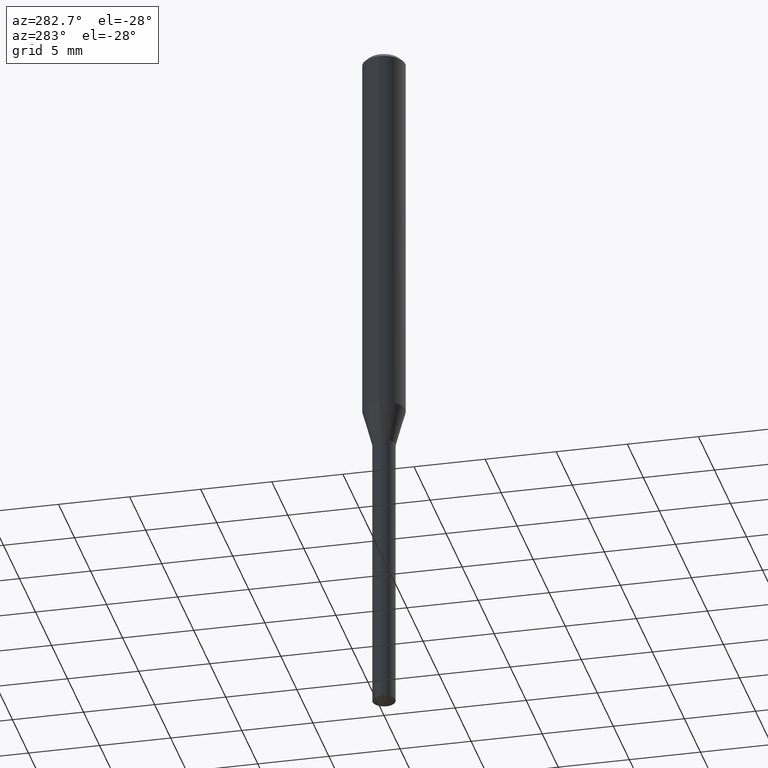
[diagram: clean part render]
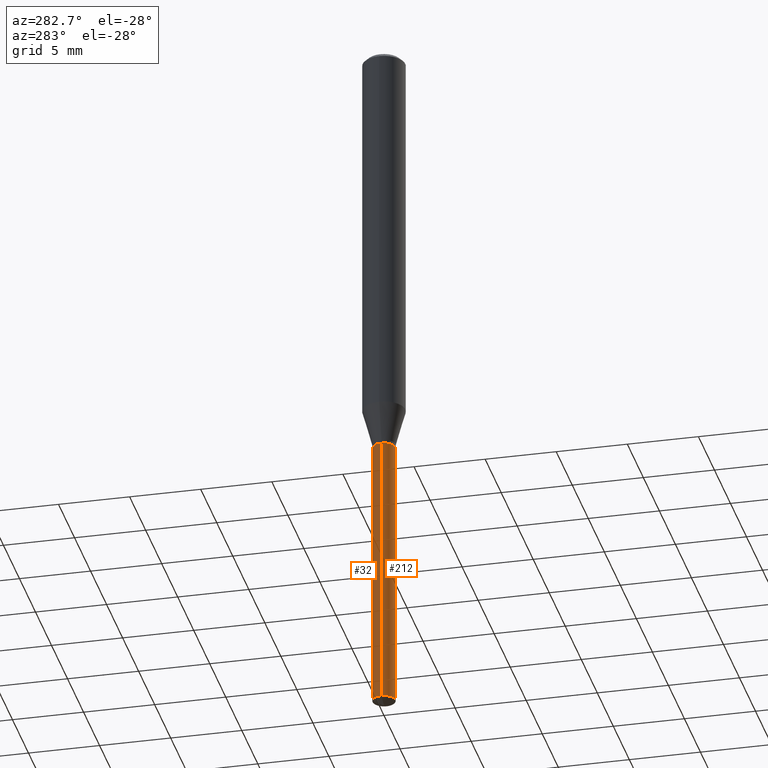
[diagram: same view with one multi-face feature highlighted, each face labeled with its STEP entity id]
A machine part, auxiliary view. The highlighted faces form ONE feature: a constant-radius fillet chain: 2 tangent blend faces with common blend radius 0.8001 mm. The faces share edges in the B-rep.
Their STEP definitions:
[1] entity #32 (Cylinder):
#10 = VERTEX_POINT ( 'NONE', #104 ) ;
#30 = VERTEX_POINT ( 'NONE', #140 ) ;
#32 = ADVANCED_FACE ( 'NONE', ( #411 ), #332, .T. ) ;
#42 = DIRECTION ( 'NONE',  ( -2.445468806185136877E-29, 3.491481338843145188E-15, 1.000000000000000000 ) ) ;
#49 = DIRECTION ( 'NONE',  ( 1.000000000000000000, -6.982962677686270655E-15, 0.000000000000000000 ) ) ;
#51 = CIRCLE ( 'NONE', #114, 0.03150000000000000022 ) ;
#67 = VECTOR ( 'NONE', #42, 39.37007874015748143 ) ;
#90 = VERTEX_POINT ( 'NONE', #331 ) ;
#92 = CARTESIAN_POINT ( 'NONE',  ( 4.777984608764188742E-29, -6.821695724184587194E-15, -1.953811308768117927 ) ) ;
#104 = CARTESIAN_POINT ( 'NONE',  ( -0.03150000000000000022, -5.248921204981680958E-15, -1.181099999999999817 ) ) ;
#108 = AXIS2_PLACEMENT_3D ( 'NONE', #470, #325, #49 ) ;
#114 = AXIS2_PLACEMENT_3D ( 'NONE', #92, #192, #359 ) ;
#116 = ORIENTED_EDGE ( 'NONE', *, *, #364, .T. ) ;
#125 = LINE ( 'NONE', #205, #67 ) ;
#139 = AXIS2_PLACEMENT_3D ( 'NONE', #475, #477, #213 ) ;
#140 = CARTESIAN_POINT ( 'NONE',  ( 0.03150000000000000022, -4.343751933654756363E-15, -1.181099999999999817 ) ) ;
#157 = ORIENTED_EDGE ( 'NONE', *, *, #290, .F. ) ;
#167 = VERTEX_POINT ( 'NONE', #388 ) ;
#192 = DIRECTION ( 'NONE',  ( -2.445468806185136597E-29, 3.491481338843145583E-15, 1.000000000000000000 ) ) ;
#205 = CARTESIAN_POINT ( 'NONE',  ( 0.03150000000000000022, -4.343751933654756363E-15, -1.181099999999999817 ) ) ;
#206 = VECTOR ( 'NONE', #362, 39.37007874015748143 ) ;
#213 = DIRECTION ( 'NONE',  ( 1.000000000000000000, -6.982962677686270655E-15, 0.000000000000000000 ) ) ;
#236 = LINE ( 'NONE', #403, #206 ) ;
#238 = EDGE_CURVE ( 'NONE', #167, #90, #51, .T. ) ;
#256 = CIRCLE ( 'NONE', #108, 0.03150000000000000022 ) ;
#259 = EDGE_LOOP ( 'NONE', ( #442, #116, #351, #157 ) ) ;
#290 = EDGE_CURVE ( 'NONE', #167, #30, #125, .T. ) ;
#325 = DIRECTION ( 'NONE',  ( -2.445468806185136597E-29, 3.491481338843145583E-15, 1.000000000000000000 ) ) ;
#329 = EDGE_CURVE ( 'NONE', #30, #10, #256, .T. ) ;
#331 = CARTESIAN_POINT ( 'NONE',  ( -0.03150000000000000716, -6.597874762420155043E-15, -1.953811308768117927 ) ) ;
#332 = CYLINDRICAL_SURFACE ( 'NONE', #139, 0.03150000000000000022 ) ;
#351 = ORIENTED_EDGE ( 'NONE', *, *, #329, .F. ) ;
#359 = DIRECTION ( 'NONE',  ( 1.000000000000000000, -6.982962677686255667E-15, 0.000000000000000000 ) ) ;
#362 = DIRECTION ( 'NONE',  ( -2.445468806185136877E-29, 3.491481338843145188E-15, 1.000000000000000000 ) ) ;
#364 = EDGE_CURVE ( 'NONE', #90, #10, #236, .T. ) ;
#388 = CARTESIAN_POINT ( 'NONE',  ( 0.03150000000000000716, -7.041659048531704533E-15, -1.953811308768117927 ) ) ;
#403 = CARTESIAN_POINT ( 'NONE',  ( -0.03150000000000000022, -3.899967647543207661E-15, -1.181099999999999817 ) ) ;
#411 = FACE_OUTER_BOUND ( 'NONE', #259, .T. ) ;
#442 = ORIENTED_EDGE ( 'NONE', *, *, #238, .T. ) ;
#470 = CARTESIAN_POINT ( 'NONE',  ( 2.888343206985264316E-29, -4.123788609307638235E-15, -1.181099999999999817 ) ) ;
#475 = CARTESIAN_POINT ( 'NONE',  ( 2.888343206985264877E-29, -4.123788609307639024E-15, -1.181099999999999817 ) ) ;
#477 = DIRECTION ( 'NONE',  ( -2.445468806185136597E-29, 3.491481338843145583E-15, 1.000000000000000000 ) ) ;
[2] entity #212 (Cylinder):
#10 = VERTEX_POINT ( 'NONE', #104 ) ;
#15 = ORIENTED_EDGE ( 'NONE', *, *, #384, .F. ) ;
#30 = VERTEX_POINT ( 'NONE', #140 ) ;
#40 = DIRECTION ( 'NONE',  ( -2.445468806185136597E-29, 3.491481338843145583E-15, 1.000000000000000000 ) ) ;
#42 = DIRECTION ( 'NONE',  ( -2.445468806185136877E-29, 3.491481338843145188E-15, 1.000000000000000000 ) ) ;
#46 = DIRECTION ( 'NONE',  ( -2.445468806185136597E-29, 3.491481338843145583E-15, 1.000000000000000000 ) ) ;
#67 = VECTOR ( 'NONE', #42, 39.37007874015748143 ) ;
#80 = EDGE_LOOP ( 'NONE', ( #435, #354, #336, #15 ) ) ;
#85 = DIRECTION ( 'NONE',  ( 1.000000000000000000, -6.982962677686270655E-15, 0.000000000000000000 ) ) ;
#87 = AXIS2_PLACEMENT_3D ( 'NONE', #432, #40, #85 ) ;
#90 = VERTEX_POINT ( 'NONE', #331 ) ;
#104 = CARTESIAN_POINT ( 'NONE',  ( -0.03150000000000000022, -5.248921204981680958E-15, -1.181099999999999817 ) ) ;
#125 = LINE ( 'NONE', #205, #67 ) ;
#140 = CARTESIAN_POINT ( 'NONE',  ( 0.03150000000000000022, -4.343751933654756363E-15, -1.181099999999999817 ) ) ;
#151 = AXIS2_PLACEMENT_3D ( 'NONE', #327, #46, #426 ) ;
#167 = VERTEX_POINT ( 'NONE', #388 ) ;
#185 = FACE_OUTER_BOUND ( 'NONE', #80, .T. ) ;
#204 = DIRECTION ( 'NONE',  ( -2.445468806185136597E-29, 3.491481338843145583E-15, 1.000000000000000000 ) ) ;
#205 = CARTESIAN_POINT ( 'NONE',  ( 0.03150000000000000022, -4.343751933654756363E-15, -1.181099999999999817 ) ) ;
#206 = VECTOR ( 'NONE', #362, 39.37007874015748143 ) ;
#212 = ADVANCED_FACE ( 'NONE', ( #185 ), #346, .T. ) ;
#236 = LINE ( 'NONE', #403, #206 ) ;
#250 = DIRECTION ( 'NONE',  ( 1.000000000000000000, -6.982962677686270655E-15, 0.000000000000000000 ) ) ;
#290 = EDGE_CURVE ( 'NONE', #167, #30, #125, .T. ) ;
#308 = CARTESIAN_POINT ( 'NONE',  ( 2.888343206985264877E-29, -4.123788609307639024E-15, -1.181099999999999817 ) ) ;
#317 = CIRCLE ( 'NONE', #151, 0.03150000000000000022 ) ;
#327 = CARTESIAN_POINT ( 'NONE',  ( 4.777984608764188742E-29, -6.821695724184587194E-15, -1.953811308768117927 ) ) ;
#331 = CARTESIAN_POINT ( 'NONE',  ( -0.03150000000000000716, -6.597874762420155043E-15, -1.953811308768117927 ) ) ;
#336 = ORIENTED_EDGE ( 'NONE', *, *, #290, .T. ) ;
#346 = CYLINDRICAL_SURFACE ( 'NONE', #347, 0.03150000000000000022 ) ;
#347 = AXIS2_PLACEMENT_3D ( 'NONE', #308, #204, #250 ) ;
#354 = ORIENTED_EDGE ( 'NONE', *, *, #380, .T. ) ;
#356 = CIRCLE ( 'NONE', #87, 0.03150000000000000022 ) ;
#362 = DIRECTION ( 'NONE',  ( -2.445468806185136877E-29, 3.491481338843145188E-15, 1.000000000000000000 ) ) ;
#364 = EDGE_CURVE ( 'NONE', #90, #10, #236, .T. ) ;
#380 = EDGE_CURVE ( 'NONE', #90, #167, #317, .T. ) ;
#384 = EDGE_CURVE ( 'NONE', #10, #30, #356, .T. ) ;
#388 = CARTESIAN_POINT ( 'NONE',  ( 0.03150000000000000716, -7.041659048531704533E-15, -1.953811308768117927 ) ) ;
#403 = CARTESIAN_POINT ( 'NONE',  ( -0.03150000000000000022, -3.899967647543207661E-15, -1.181099999999999817 ) ) ;
#426 = DIRECTION ( 'NONE',  ( 1.000000000000000000, -6.982962677686255667E-15, 0.000000000000000000 ) ) ;
#432 = CARTESIAN_POINT ( 'NONE',  ( 2.888343206985264316E-29, -4.123788609307638235E-15, -1.181099999999999817 ) ) ;
#435 = ORIENTED_EDGE ( 'NONE', *, *, #364, .F. ) ;